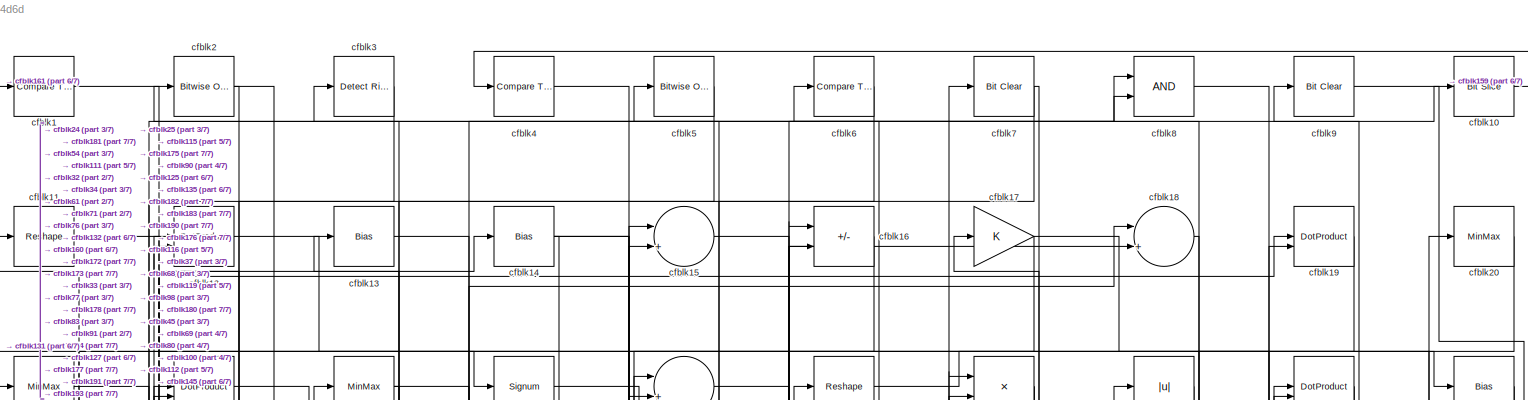
[diagram: root canvas - part 1/7, full width, top band]
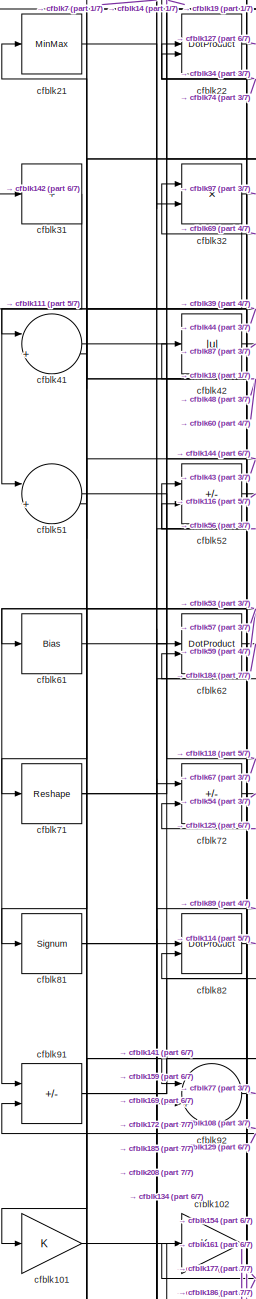
[diagram: root canvas - part 2/7, top left region]
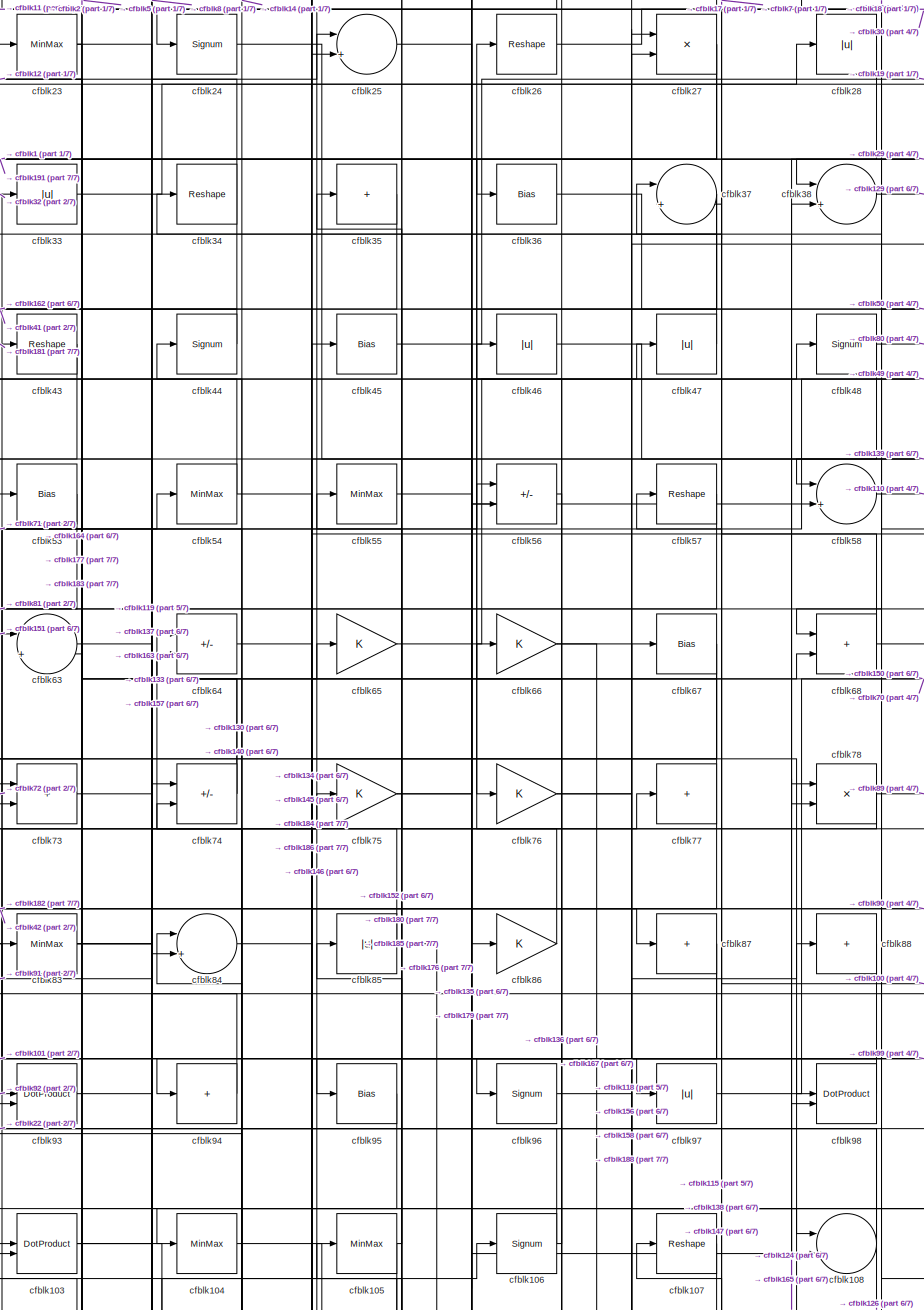
[diagram: root canvas - part 3/7, top center region]
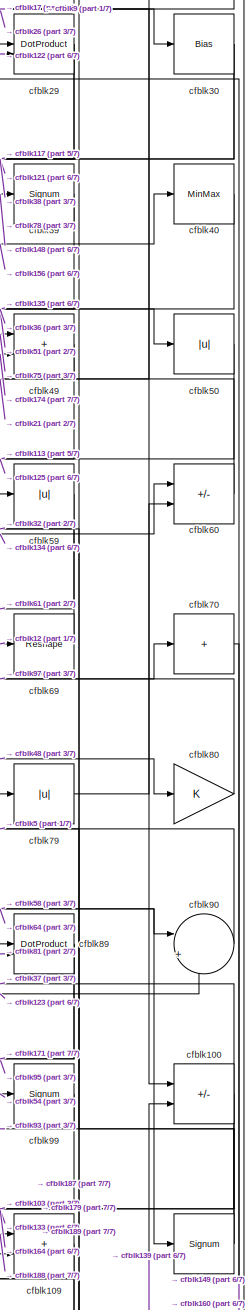
[diagram: root canvas - part 4/7, top right region]
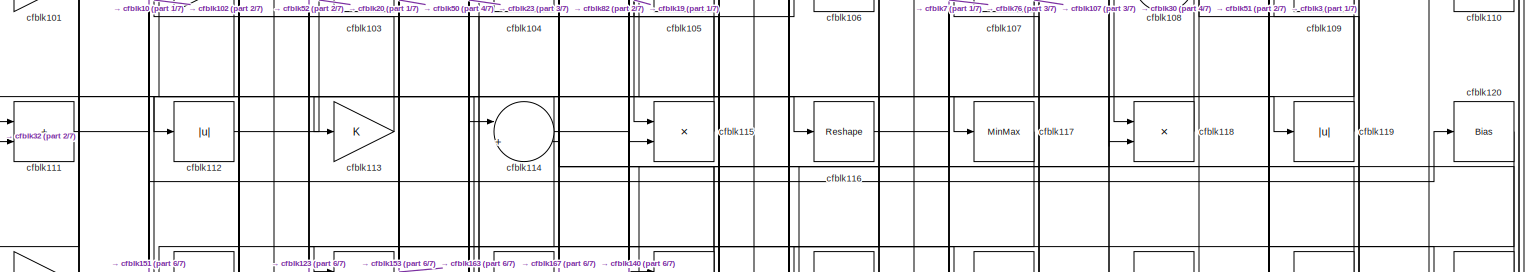
[diagram: root canvas - part 5/7, full width, middle band]
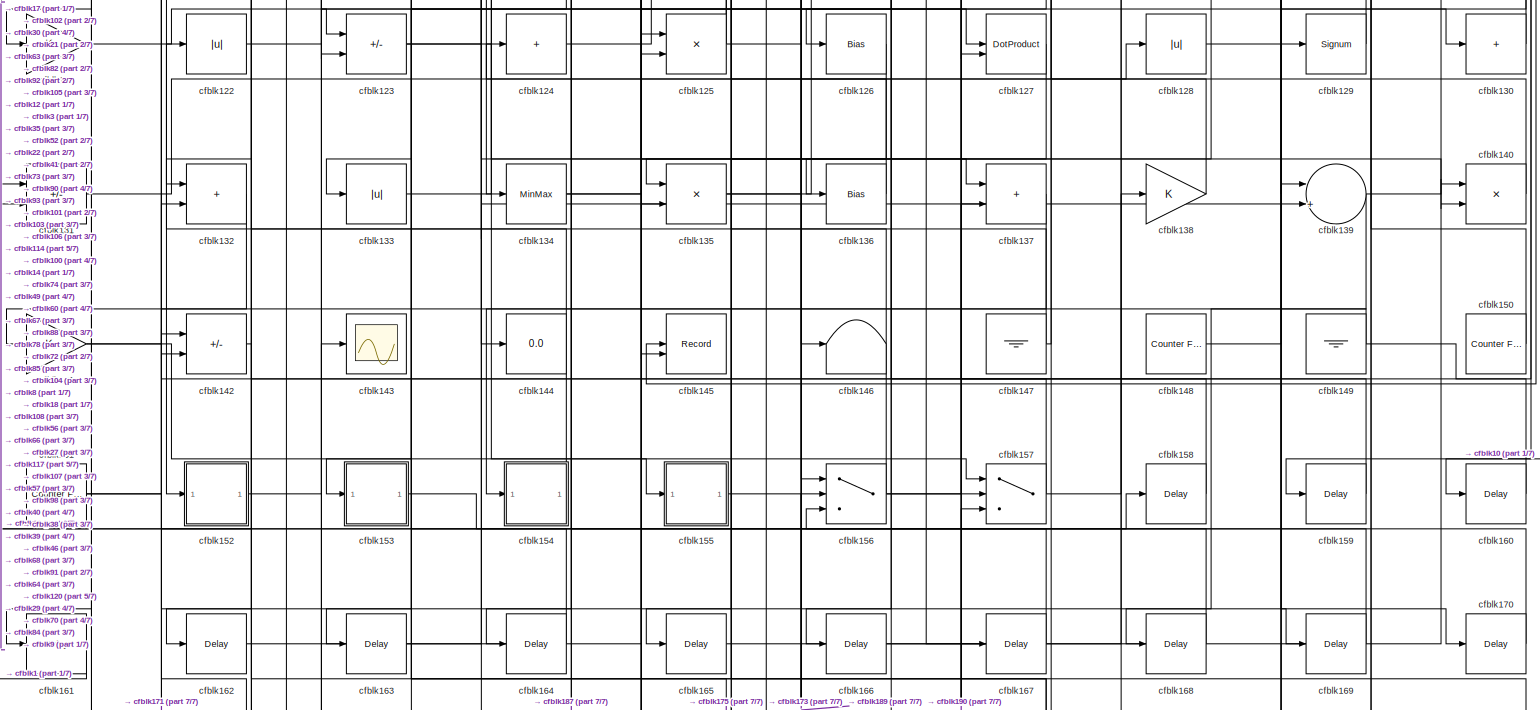
[diagram: root canvas - part 6/7, full width, bottom band]
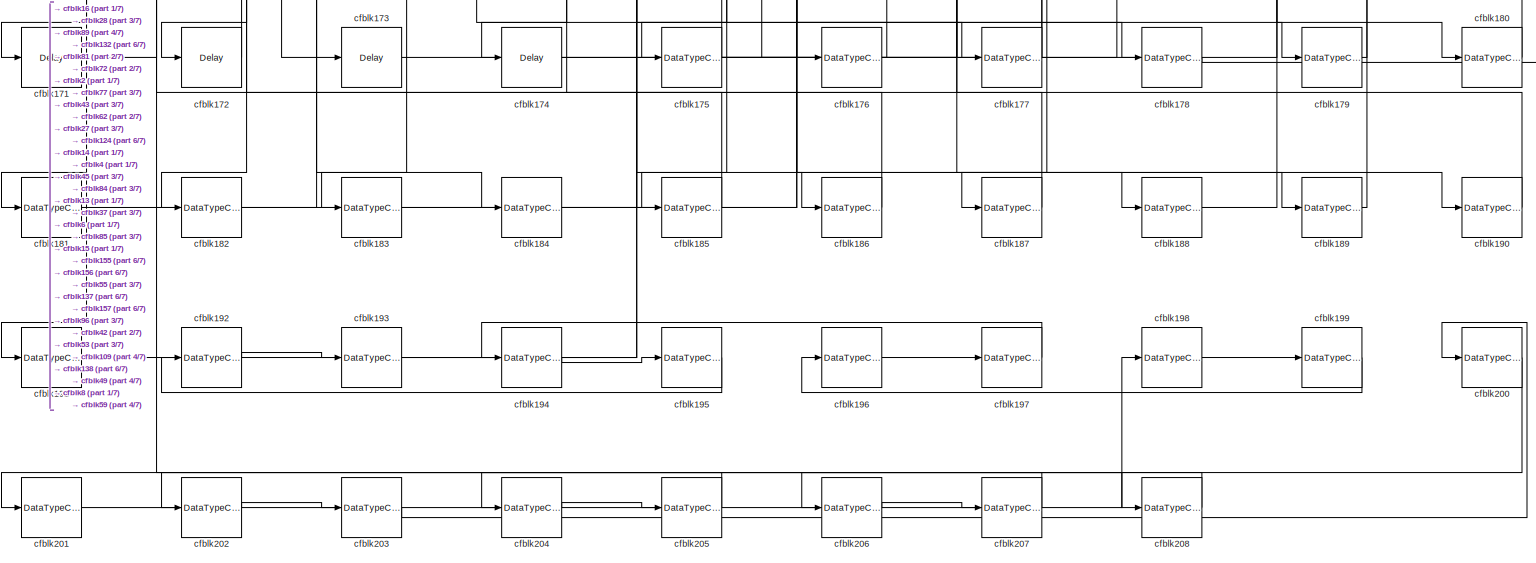
[diagram: root canvas - part 7/7, full width, bottom band]
MODEL slx_afeb604e4d6d
KIND model
CONFIG AbsTol = auto
CONFIG EnableMultiTasking = off
CONFIG FixedStep = auto
CONFIG MaxStep = auto
CONFIG MinStep = auto
CONFIG RelTol = 1e-3
CONFIG SampleTimeConstraint = Unconstrained
CONFIG SolverName = VariableStepAuto
CONFIG StartTime = 0.0
CONFIG StopTime = 10.0
BLOCK [Reference] cfblk1  REF=hdlsllib/Logic and Bit
Operations/Compare
To Zero
  SourceBlock = hdlsllib/Logic and Bit\nOperations/Compare\nTo Zero
  SourceType = Compare To Zero
BLOCK [Reference] cfblk10  REF=hdlsllib/Logic and Bit
Operations/Bit Slice
  SourceBlock = hdlsllib/Logic and Bit\nOperations/Bit Slice
  SourceType = Bit Slice
BLOCK [Sum] cfblk100
  IconShape = rectangular
  Inputs = +-
BLOCK [Gain] cfblk101
BLOCK [Gain] cfblk102
BLOCK [DotProduct] cfblk103
  OutDataTypeStr = Inherit: Inherit via internal rule
BLOCK [MinMax] cfblk104
BLOCK [MinMax] cfblk105
BLOCK [Signum] cfblk106
BLOCK [Reshape] cfblk107
BLOCK [Sum] cfblk108
  Inputs = |++
BLOCK [Sum] cfblk109
  IconShape = rectangular
BLOCK [Reshape] cfblk11
BLOCK [Signum] cfblk110
BLOCK [Sum] cfblk111
  IconShape = rectangular
BLOCK [Abs] cfblk112
  SaturateOnIntegerOverflow = off
BLOCK [Gain] cfblk113
BLOCK [Sum] cfblk114
  Inputs = |++
BLOCK [Product] cfblk115
  Inputs = */
  RndMeth = Zero
  SaturateOnIntegerOverflow = on
BLOCK [Reshape] cfblk116
BLOCK [MinMax] cfblk117
BLOCK [Product] cfblk118
  Inputs = */
  RndMeth = Zero
  SaturateOnIntegerOverflow = on
BLOCK [Abs] cfblk119
  SaturateOnIntegerOverflow = off
BLOCK [DotProduct] cfblk12
  OutDataTypeStr = Inherit: Inherit via internal rule
BLOCK [Bias] cfblk120
  Bias = 0.0
  SaturateOnIntegerOverflow = off
BLOCK [Gain] cfblk121
BLOCK [Abs] cfblk122
  SaturateOnIntegerOverflow = off
BLOCK [Sum] cfblk123
  IconShape = rectangular
  Inputs = +-
BLOCK [Sum] cfblk124
  IconShape = rectangular
  Inputs = +
BLOCK [Product] cfblk125
  Inputs = */
  RndMeth = Zero
  SaturateOnIntegerOverflow = on
BLOCK [Bias] cfblk126
  Bias = 0.0
  SaturateOnIntegerOverflow = off
BLOCK [DotProduct] cfblk127
  OutDataTypeStr = Inherit: Inherit via internal rule
BLOCK [Abs] cfblk128
  SaturateOnIntegerOverflow = off
BLOCK [Signum] cfblk129
BLOCK [Bias] cfblk13
  Bias = 0.0
  SaturateOnIntegerOverflow = off
BLOCK [Sum] cfblk130
  IconShape = rectangular
  Inputs = +
BLOCK [Sum] cfblk131
  IconShape = rectangular
  Inputs = +-
BLOCK [Sum] cfblk132
  IconShape = rectangular
BLOCK [Abs] cfblk133
  SaturateOnIntegerOverflow = off
BLOCK [MinMax] cfblk134
BLOCK [Product] cfblk135
  Inputs = */
  RndMeth = Zero
  SaturateOnIntegerOverflow = on
BLOCK [Bias] cfblk136
  Bias = 0.0
  SaturateOnIntegerOverflow = off
BLOCK [Sum] cfblk137
  IconShape = rectangular
BLOCK [Gain] cfblk138
BLOCK [Sum] cfblk139
  Inputs = |++
BLOCK [Bias] cfblk14
  Bias = 0.0
  SaturateOnIntegerOverflow = off
BLOCK [Product] cfblk140
  Inputs = */
  RndMeth = Zero
  SaturateOnIntegerOverflow = on
BLOCK [Gain] cfblk141
BLOCK [Sum] cfblk142
  IconShape = rectangular
  Inputs = +-
BLOCK [Scope] cfblk143
  Floating = off
  NumInputPorts = 1
  ScopeSpecificationString = Simulink.scopes.TimeScopeBlockCfg('CurrentConfiguration', extmgr.ConfigurationSet(extmgr.Configuration('Core','General UI',true),extmgr.Configuration('Core','Source UI',true),extmgr.Configuration('Sources','WiredSimulink',true,'DataLoggingVariableName','ScopeData2','DataLoggingSaveFormat','Array','DataLoggingLimitDataPoints',true,'DataLoggingDecimation','1'),extmgr.Configuration('Visuals','Time Do...<+868ch>
BLOCK [Display] cfblk144
  Decimation = 1
BLOCK [Record] cfblk145
  CompatibilityTag = XY
  FileSettingsInternal = {"entries":[{"content":{"excelSettings":{"content":{},"type":"Streamout.ExcelSettings"}},"type":"Streamout.FileSettingStorage","uuid":""}],"packageUris":["http:\/\/schema.mathworks.com\/mf0\/streamout_blocks\/R2020a"],"version":"1.0"}
  Layout = [1 1]
  SignalsInternal = {"entries":[{"content":{"signals":[{"content":{"blockPath":[],"dimensions":[1],"domain":"","lineColor":"#a2142f","plots":[1],"port":1,"signalID":5563,"signalName":"XY Graph:1"},"type":"RecordBlkView.Signal","uuid":""},{"content":{"blockPath":[],"dimensions":[1],"domain":"","lineColor":"#139fff","plots":[1],"port":2,"signalID":5566,"signalName":"XY Graph:2"},"type":"RecordBlkView.Signal","uuid":""}...<+146ch>
  VisualizationBindings = {"xyplotplugin":{"info":[{"series":[{"bindingParametersList":[{"parameter":"X-Axis","signalID":5563,"signalName":"XY Graph:1"},{"parameter":"Y-Axis","signalID":5566,"signalName":"XY Graph:2"}],"seriesID":15514}],"subplotID":1}]}}
  st = -1
BLOCK [Terminator] cfblk146
BLOCK [Ground] cfblk147
BLOCK [Reference] cfblk148  REF=hdlsllib/Sources/Counter
Free-Running
  SourceBlock = hdlsllib/Sources/Counter\nFree-Running
  SourceType = Counter Free-Running
BLOCK [Ground] cfblk149
BLOCK [Sum] cfblk15
  Inputs = |++
BLOCK [Reference] cfblk150  REF=hdlsllib/Sources/Counter
Free-Running
  SourceBlock = hdlsllib/Sources/Counter\nFree-Running
  SourceType = Counter Free-Running
BLOCK [Reference] cfblk151  REF=hdlsllib/Sources/Counter
Free-Running
  SourceBlock = hdlsllib/Sources/Counter\nFree-Running
  SourceType = Counter Free-Running
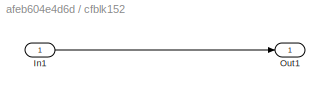
BLOCK [SubSystem] cfblk152
  LibrarySourceBlock = hdlsllib/Ports &\nSubsystems/Subsystem
BLOCK [Inport] cfblk152/In1
BLOCK [Outport] cfblk152/Out1
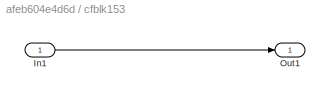
BLOCK [SubSystem] cfblk153
  LibrarySourceBlock = hdlsllib/Ports &\nSubsystems/Subsystem
BLOCK [Inport] cfblk153/In1
BLOCK [Outport] cfblk153/Out1
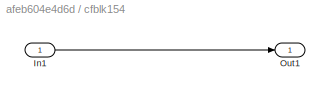
BLOCK [SubSystem] cfblk154
  LibrarySourceBlock = hdlsllib/Ports &\nSubsystems/Subsystem
BLOCK [Inport] cfblk154/In1
BLOCK [Outport] cfblk154/Out1
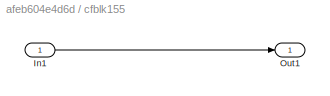
BLOCK [SubSystem] cfblk155
  LibrarySourceBlock = hdlsllib/Ports &\nSubsystems/Subsystem
BLOCK [Inport] cfblk155/In1
BLOCK [Outport] cfblk155/Out1
BLOCK [Switch] cfblk156
  InputSameDT = off
  SaturateOnIntegerOverflow = off
BLOCK [Switch] cfblk157
  InputSameDT = off
  SaturateOnIntegerOverflow = off
BLOCK [Delay] cfblk158
  InputPortMap = u0
  SampleTime = 1
BLOCK [Delay] cfblk159
  InputPortMap = u0
  SampleTime = 1
BLOCK [Sum] cfblk16
  IconShape = rectangular
  Inputs = +-
BLOCK [Delay] cfblk160
  InputPortMap = u0
  SampleTime = 1
BLOCK [Delay] cfblk161
  InputPortMap = u0
  SampleTime = 1
BLOCK [Delay] cfblk162
  InputPortMap = u0
  SampleTime = 1
BLOCK [Delay] cfblk163
  InputPortMap = u0
  SampleTime = 1
BLOCK [Delay] cfblk164
  InputPortMap = u0
  SampleTime = 1
BLOCK [Delay] cfblk165
  InputPortMap = u0
  SampleTime = 1
BLOCK [Delay] cfblk166
  InputPortMap = u0
  SampleTime = 1
BLOCK [Delay] cfblk167
  InputPortMap = u0
  SampleTime = 1
BLOCK [Delay] cfblk168
  InputPortMap = u0
  SampleTime = 1
BLOCK [Delay] cfblk169
  InputPortMap = u0
  SampleTime = 1
BLOCK [Gain] cfblk17
BLOCK [Delay] cfblk170
  InputPortMap = u0
  SampleTime = 1
BLOCK [Delay] cfblk171
  InputPortMap = u0
  SampleTime = 1
BLOCK [Delay] cfblk172
  InputPortMap = u0
  SampleTime = 1
BLOCK [Delay] cfblk173
  InputPortMap = u0
  SampleTime = 1
BLOCK [Delay] cfblk174
  InputPortMap = u0
  SampleTime = 1
BLOCK [DataTypeConversion] cfblk175
  RndMeth = Floor
  SaturateOnIntegerOverflow = off
BLOCK [DataTypeConversion] cfblk176
  OutDataTypeStr = uint8
  RndMeth = Floor
  SaturateOnIntegerOverflow = off
BLOCK [DataTypeConversion] cfblk177
  RndMeth = Floor
  SaturateOnIntegerOverflow = off
BLOCK [DataTypeConversion] cfblk178
  OutDataTypeStr = uint8
  RndMeth = Floor
  SaturateOnIntegerOverflow = off
BLOCK [DataTypeConversion] cfblk179
  OutDataTypeStr = uint8
  RndMeth = Floor
  SaturateOnIntegerOverflow = off
BLOCK [Sum] cfblk18
  Inputs = |++
BLOCK [DataTypeConversion] cfblk180
  OutDataTypeStr = uint8
  RndMeth = Floor
  SaturateOnIntegerOverflow = off
BLOCK [DataTypeConversion] cfblk181
  OutDataTypeStr = uint8
  RndMeth = Floor
  SaturateOnIntegerOverflow = off
BLOCK [DataTypeConversion] cfblk182
  OutDataTypeStr = uint8
  RndMeth = Floor
  SaturateOnIntegerOverflow = off
BLOCK [DataTypeConversion] cfblk183
  OutDataTypeStr = uint8
  RndMeth = Floor
  SaturateOnIntegerOverflow = off
BLOCK [DataTypeConversion] cfblk184
  OutDataTypeStr = uint8
  RndMeth = Floor
  SaturateOnIntegerOverflow = off
BLOCK [DataTypeConversion] cfblk185
  OutDataTypeStr = uint8
  RndMeth = Floor
  SaturateOnIntegerOverflow = off
BLOCK [DataTypeConversion] cfblk186
  OutDataTypeStr = uint8
  RndMeth = Floor
  SaturateOnIntegerOverflow = off
BLOCK [DataTypeConversion] cfblk187
  OutDataTypeStr = uint8
  RndMeth = Floor
  SaturateOnIntegerOverflow = off
BLOCK [DataTypeConversion] cfblk188
  OutDataTypeStr = uint8
  RndMeth = Floor
  SaturateOnIntegerOverflow = off
BLOCK [DataTypeConversion] cfblk189
  OutDataTypeStr = uint8
  RndMeth = Floor
  SaturateOnIntegerOverflow = off
BLOCK [DotProduct] cfblk19
  OutDataTypeStr = Inherit: Inherit via internal rule
BLOCK [DataTypeConversion] cfblk190
  OutDataTypeStr = uint8
  RndMeth = Floor
  SaturateOnIntegerOverflow = off
BLOCK [DataTypeConversion] cfblk191
  OutDataTypeStr = uint8
  RndMeth = Floor
  SaturateOnIntegerOverflow = off
BLOCK [DataTypeConversion] cfblk192
  OutDataTypeStr = uint8
  RndMeth = Floor
  SaturateOnIntegerOverflow = off
BLOCK [DataTypeConversion] cfblk193
  OutDataTypeStr = uint8
  RndMeth = Floor
  SaturateOnIntegerOverflow = off
BLOCK [DataTypeConversion] cfblk194
  OutDataTypeStr = uint8
  RndMeth = Floor
  SaturateOnIntegerOverflow = off
BLOCK [DataTypeConversion] cfblk195
  OutDataTypeStr = uint8
  RndMeth = Floor
  SaturateOnIntegerOverflow = off
BLOCK [DataTypeConversion] cfblk196
  OutDataTypeStr = uint8
  RndMeth = Floor
  SaturateOnIntegerOverflow = off
BLOCK [DataTypeConversion] cfblk197
  OutDataTypeStr = uint8
  RndMeth = Floor
  SaturateOnIntegerOverflow = off
BLOCK [DataTypeConversion] cfblk198
  OutDataTypeStr = uint8
  RndMeth = Floor
  SaturateOnIntegerOverflow = off
BLOCK [DataTypeConversion] cfblk199
  OutDataTypeStr = uint8
  RndMeth = Floor
  SaturateOnIntegerOverflow = off
BLOCK [Reference] cfblk2  REF=simulink/Logic and Bit
Operations/Bitwise
Operator
  LibrarySourceBlock = hdlsllib/Logic and Bit\nOperations/Bitwise\nOperator
  SourceBlock = simulink/Logic and Bit\nOperations/Bitwise\nOperator
  SourceType = Bitwise Operator
BLOCK [MinMax] cfblk20
BLOCK [DataTypeConversion] cfblk200
  OutDataTypeStr = uint8
  RndMeth = Floor
  SaturateOnIntegerOverflow = off
BLOCK [DataTypeConversion] cfblk201
  OutDataTypeStr = uint8
  RndMeth = Floor
  SaturateOnIntegerOverflow = off
BLOCK [DataTypeConversion] cfblk202
  OutDataTypeStr = uint8
  RndMeth = Floor
  SaturateOnIntegerOverflow = off
BLOCK [DataTypeConversion] cfblk203
  OutDataTypeStr = uint8
  RndMeth = Floor
  SaturateOnIntegerOverflow = off
BLOCK [DataTypeConversion] cfblk204
  OutDataTypeStr = uint8
  RndMeth = Floor
  SaturateOnIntegerOverflow = off
BLOCK [DataTypeConversion] cfblk205
  OutDataTypeStr = uint8
  RndMeth = Floor
  SaturateOnIntegerOverflow = off
BLOCK [DataTypeConversion] cfblk206
  OutDataTypeStr = uint8
  RndMeth = Floor
  SaturateOnIntegerOverflow = off
BLOCK [DataTypeConversion] cfblk207
  OutDataTypeStr = uint8
  RndMeth = Floor
  SaturateOnIntegerOverflow = off
BLOCK [DataTypeConversion] cfblk208
  OutDataTypeStr = uint8
  RndMeth = Floor
  SaturateOnIntegerOverflow = off
BLOCK [MinMax] cfblk21
BLOCK [DotProduct] cfblk22
  OutDataTypeStr = Inherit: Inherit via internal rule
BLOCK [MinMax] cfblk23
BLOCK [Signum] cfblk24
BLOCK [Sum] cfblk25
  Inputs = |++
BLOCK [Reshape] cfblk26
BLOCK [Product] cfblk27
  Inputs = */
  RndMeth = Zero
  SaturateOnIntegerOverflow = on
BLOCK [Abs] cfblk28
  SaturateOnIntegerOverflow = off
BLOCK [DotProduct] cfblk29
  OutDataTypeStr = Inherit: Inherit via internal rule
BLOCK [Reference] cfblk3  REF=hdlsllib/Logic and Bit
Operations/Detect Rise
Nonnegative
  SourceBlock = hdlsllib/Logic and Bit\nOperations/Detect Rise\nNonnegative
  SourceType = Detect Rise Nonnegative
BLOCK [Bias] cfblk30
  Bias = 0.0
  SaturateOnIntegerOverflow = off
BLOCK [Sum] cfblk31
  IconShape = rectangular
  Inputs = +
BLOCK [Product] cfblk32
  Inputs = */
  RndMeth = Zero
  SaturateOnIntegerOverflow = on
BLOCK [Abs] cfblk33
  SaturateOnIntegerOverflow = off
BLOCK [Reshape] cfblk34
BLOCK [Sum] cfblk35
  IconShape = rectangular
  Inputs = +
BLOCK [Bias] cfblk36
  Bias = 0.0
  SaturateOnIntegerOverflow = off
BLOCK [Sum] cfblk37
  Inputs = |++
BLOCK [Sum] cfblk38
  Inputs = |++
BLOCK [Signum] cfblk39
BLOCK [Reference] cfblk4  REF=hdlsllib/Logic and Bit
Operations/Compare
To Constant
  SourceBlock = hdlsllib/Logic and Bit\nOperations/Compare\nTo Constant
  SourceType = Compare To Constant
BLOCK [MinMax] cfblk40
BLOCK [Sum] cfblk41
  Inputs = |++
BLOCK [Abs] cfblk42
  SaturateOnIntegerOverflow = off
BLOCK [Reshape] cfblk43
BLOCK [Signum] cfblk44
BLOCK [Bias] cfblk45
  Bias = 0.0
  SaturateOnIntegerOverflow = off
BLOCK [Abs] cfblk46
  SaturateOnIntegerOverflow = off
BLOCK [Abs] cfblk47
  SaturateOnIntegerOverflow = off
BLOCK [Signum] cfblk48
BLOCK [Sum] cfblk49
  IconShape = rectangular
BLOCK [Reference] cfblk5  REF=simulink/Logic and Bit
Operations/Bitwise
Operator
  LibrarySourceBlock = hdlsllib/Logic and Bit\nOperations/Bitwise\nOperator
  SourceBlock = simulink/Logic and Bit\nOperations/Bitwise\nOperator
  SourceType = Bitwise Operator
BLOCK [Abs] cfblk50
  SaturateOnIntegerOverflow = off
BLOCK [Sum] cfblk51
  Inputs = |++
BLOCK [Sum] cfblk52
  IconShape = rectangular
  Inputs = +-
BLOCK [Bias] cfblk53
  Bias = 0.0
  SaturateOnIntegerOverflow = off
BLOCK [MinMax] cfblk54
BLOCK [MinMax] cfblk55
BLOCK [Sum] cfblk56
  IconShape = rectangular
  Inputs = +-
BLOCK [Reshape] cfblk57
BLOCK [Sum] cfblk58
  Inputs = |++
BLOCK [Abs] cfblk59
  SaturateOnIntegerOverflow = off
BLOCK [Reference] cfblk6  REF=hdlsllib/Logic and Bit
Operations/Compare
To Zero
  SourceBlock = hdlsllib/Logic and Bit\nOperations/Compare\nTo Zero
  SourceType = Compare To Zero
BLOCK [Sum] cfblk60
  IconShape = rectangular
  Inputs = +-
BLOCK [Bias] cfblk61
  Bias = 0.0
  SaturateOnIntegerOverflow = off
BLOCK [DotProduct] cfblk62
  OutDataTypeStr = Inherit: Inherit via internal rule
BLOCK [Sum] cfblk63
  Inputs = |++
BLOCK [Sum] cfblk64
  IconShape = rectangular
  Inputs = +-
BLOCK [Gain] cfblk65
BLOCK [Gain] cfblk66
BLOCK [Bias] cfblk67
  Bias = 0.0
  SaturateOnIntegerOverflow = off
BLOCK [Sum] cfblk68
  IconShape = rectangular
BLOCK [Reshape] cfblk69
BLOCK [Reference] cfblk7  REF=simulink/Logic and Bit
Operations/Bit Clear
  LibrarySourceBlock = hdlsllib/Logic and Bit\nOperations/Bit Clear
  SourceBlock = simulink/Logic and Bit\nOperations/Bit Clear
  SourceType = Bit Clear
BLOCK [Sum] cfblk70
  IconShape = rectangular
  Inputs = +
BLOCK [Reshape] cfblk71
BLOCK [Sum] cfblk72
  IconShape = rectangular
  Inputs = +-
BLOCK [Sum] cfblk73
  IconShape = rectangular
BLOCK [Sum] cfblk74
  IconShape = rectangular
  Inputs = +-
BLOCK [Gain] cfblk75
BLOCK [Gain] cfblk76
BLOCK [Sum] cfblk77
  IconShape = rectangular
  Inputs = +
BLOCK [Product] cfblk78
  Inputs = */
  RndMeth = Zero
  SaturateOnIntegerOverflow = on
BLOCK [Abs] cfblk79
  SaturateOnIntegerOverflow = off
BLOCK [Logic] cfblk8
  AllPortsSameDT = off
  OutDataTypeStr = boolean
BLOCK [Gain] cfblk80
BLOCK [Signum] cfblk81
BLOCK [DotProduct] cfblk82
  OutDataTypeStr = Inherit: Inherit via internal rule
BLOCK [MinMax] cfblk83
BLOCK [Sum] cfblk84
  Inputs = |++
BLOCK [Abs] cfblk85
  SaturateOnIntegerOverflow = off
BLOCK [Gain] cfblk86
BLOCK [Sum] cfblk87
  IconShape = rectangular
  Inputs = +
BLOCK [Sum] cfblk88
  IconShape = rectangular
  Inputs = +
BLOCK [DotProduct] cfblk89
  OutDataTypeStr = Inherit: Inherit via internal rule
BLOCK [Reference] cfblk9  REF=simulink/Logic and Bit
Operations/Bit Clear
  LibrarySourceBlock = hdlsllib/Logic and Bit\nOperations/Bit Clear
  SourceBlock = simulink/Logic and Bit\nOperations/Bit Clear
  SourceType = Bit Clear
BLOCK [Sum] cfblk90
  Inputs = |++
BLOCK [Sum] cfblk91
  IconShape = rectangular
  Inputs = +-
BLOCK [Sum] cfblk92
  Inputs = |++
BLOCK [DotProduct] cfblk93
  OutDataTypeStr = Inherit: Inherit via internal rule
BLOCK [Sum] cfblk94
  IconShape = rectangular
  Inputs = +
BLOCK [Bias] cfblk95
  Bias = 0.0
  SaturateOnIntegerOverflow = off
BLOCK [Signum] cfblk96
BLOCK [Abs] cfblk97
  SaturateOnIntegerOverflow = off
BLOCK [DotProduct] cfblk98
  OutDataTypeStr = Inherit: Inherit via internal rule
BLOCK [Signum] cfblk99
NET cfblk100:1 -> cfblk133:1, cfblk164:1, cfblk37:1
LINE cfblk101:1 -> cfblk134:1
LINE cfblk102:1 -> cfblk161:1
NET cfblk103:1 -> cfblk157:1, cfblk25:1
LINE cfblk104:1 -> cfblk146:1
NET cfblk105:1 -> cfblk152:1, cfblk35:1
NET cfblk106:1 -> cfblk63:2, cfblk66:1
LINE cfblk107:1 -> cfblk115:2
NET cfblk108:1 -> cfblk126:1, cfblk22:2, cfblk44:1
LINE cfblk109:1 -> cfblk187:1
LINE cfblk10:1 -> cfblk159:1
NET cfblk110:1 -> cfblk79:1, cfblk93:1
LINE cfblk111:1 -> cfblk10:1
LINE cfblk112:1 -> cfblk20:1
LINE cfblk113:1 -> cfblk82:2
NET cfblk114:1 -> cfblk111:1, cfblk140:2, cfblk153:1
LINE cfblk115:1 -> cfblk102:1
LINE cfblk116:1 -> cfblk7:1
LINE cfblk117:1 -> cfblk163:1
LINE cfblk118:1 -> cfblk112:1
LINE cfblk119:1 -> cfblk3:1
LINE cfblk11:1 -> cfblk24:1
LINE cfblk120:1 -> cfblk123:2
LINE cfblk121:1 -> cfblk123:1
LINE cfblk122:1 -> cfblk29:2
NET cfblk123:1 -> cfblk156:1, cfblk90:2
LINE cfblk124:1 -> cfblk78:1
NET cfblk125:1 -> cfblk52:2, cfblk72:2, cfblk8:2
LINE cfblk126:1 -> cfblk165:1
LINE cfblk127:1 -> cfblk166:1
LINE cfblk128:1 -> cfblk170:1
LINE cfblk129:1 -> cfblk91:2
LINE cfblk12:1 -> cfblk69:1
LINE cfblk130:1 -> cfblk84:1
LINE cfblk131:1 -> cfblk128:1
LINE cfblk132:1 -> cfblk142:2
LINE cfblk133:1 -> cfblk106:1
NET cfblk134:1 -> cfblk60:1, cfblk68:2
NET cfblk135:1 -> cfblk18:2, cfblk67:1
LINE cfblk136:1 -> cfblk105:1
LINE cfblk137:1 -> cfblk154:1
LINE cfblk138:1 -> cfblk57:1
NET cfblk139:1 -> cfblk100:2, cfblk168:1
LINE cfblk13:1 -> cfblk178:1
LINE cfblk140:1 -> cfblk74:2
NET cfblk141:1 -> cfblk155:1, cfblk92:2
LINE cfblk142:1 -> cfblk31:1
NET cfblk147:1 -> cfblk107:1, cfblk85:1
LINE cfblk148:1 -> cfblk39:1
NET cfblk149:1 -> cfblk141:1, cfblk29:1
NET cfblk14:1 -> cfblk127:2, cfblk174:1, cfblk25:2
LINE cfblk150:1 -> cfblk64:2
NET cfblk151:1 -> cfblk120:1, cfblk63:1
LINE cfblk152/In1:1 -> cfblk152/Out1:1
LINE cfblk152:1 -> cfblk143:1
LINE cfblk153/In1:1 -> cfblk153/Out1:1
LINE cfblk153:1 -> cfblk158:1
LINE cfblk154/In1:1 -> cfblk154/Out1:1
LINE cfblk154:1 -> cfblk52:1
LINE cfblk155/In1:1 -> cfblk155/Out1:1
LINE cfblk155:1 -> cfblk189:1
NET cfblk156:1 -> cfblk122:1, cfblk40:1, cfblk88:1
NET cfblk157:1 -> cfblk38:2, cfblk46:1
LINE cfblk158:1 -> cfblk27:1
LINE cfblk159:1 -> cfblk82:1
LINE cfblk15:1 -> cfblk190:1
LINE cfblk160:1 -> cfblk12:2
LINE cfblk161:1 -> cfblk1:1
LINE cfblk162:1 -> cfblk125:1
LINE cfblk163:1 -> cfblk74:1
LINE cfblk164:1 -> cfblk93:2
LINE cfblk165:1 -> cfblk98:2
LINE cfblk166:1 -> cfblk140:1
LINE cfblk167:1 -> cfblk114:2
LINE cfblk168:1 -> cfblk156:3
LINE cfblk169:1 -> cfblk142:1
LINE cfblk16:1 -> cfblk181:1
LINE cfblk170:1 -> cfblk131:1
LINE cfblk171:1 -> cfblk132:2
LINE cfblk172:1 -> cfblk72:1
LINE cfblk173:1 -> cfblk156:2
LINE cfblk174:1 -> cfblk49:2
NET cfblk175:1 -> cfblk137:2, cfblk138:1, cfblk13:1, cfblk157:3
LINE cfblk176:1 -> cfblk6:1
NET cfblk177:1 -> cfblk42:1, cfblk53:1
LINE cfblk178:1 -> cfblk4:1
LINE cfblk179:1 -> cfblk59:1
NET cfblk17:1 -> cfblk100:1, cfblk131:2
LINE cfblk180:1 -> cfblk55:1
LINE cfblk181:1 -> cfblk43:1
LINE cfblk182:1 -> cfblk16:1
LINE cfblk183:1 -> cfblk16:2
LINE cfblk184:1 -> cfblk45:1
LINE cfblk185:1 -> cfblk62:1
LINE cfblk186:1 -> cfblk62:2
LINE cfblk187:1 -> cfblk124:1
LINE cfblk188:1 -> cfblk109:1
LINE cfblk189:1 -> cfblk109:2
LINE cfblk18:1 -> cfblk68:1
LINE cfblk190:1 -> cfblk157:2
LINE cfblk191:1 -> cfblk15:1
LINE cfblk192:1 -> cfblk193:1
LINE cfblk193:1 -> cfblk15:2
LINE cfblk194:1 -> cfblk195:1
LINE cfblk195:1 -> cfblk192:1
LINE cfblk196:1 -> cfblk197:1
LINE cfblk197:1 -> cfblk194:1
LINE cfblk198:1 -> cfblk199:1
LINE cfblk199:1 -> cfblk196:1
LINE cfblk19:1 -> cfblk115:1
LINE cfblk1:1 -> cfblk76:1
LINE cfblk200:1 -> cfblk201:1
LINE cfblk201:1 -> cfblk198:1
LINE cfblk202:1 -> cfblk203:1
LINE cfblk203:1 -> cfblk200:1
LINE cfblk204:1 -> cfblk205:1
LINE cfblk205:1 -> cfblk202:1
LINE cfblk206:1 -> cfblk207:1
LINE cfblk207:1 -> cfblk204:1
LINE cfblk208:1 -> cfblk206:1
LINE cfblk20:1 -> cfblk98:1
LINE cfblk21:1 -> cfblk169:1
LINE cfblk22:1 -> cfblk127:1
NET cfblk23:1 -> cfblk119:1, cfblk73:1
LINE cfblk24:1 -> cfblk86:1
LINE cfblk25:1 -> cfblk108:2
LINE cfblk26:1 -> cfblk30:1
NET cfblk27:1 -> cfblk103:2, cfblk183:1, cfblk36:1
LINE cfblk28:1 -> cfblk191:1
NET cfblk29:1 -> cfblk38:1, cfblk78:2
NET cfblk2:1 -> cfblk172:1, cfblk173:1
NET cfblk30:1 -> cfblk117:1, cfblk121:1
LINE cfblk31:1 -> cfblk51:1
NET cfblk32:1 -> cfblk111:2, cfblk97:1
LINE cfblk33:1 -> cfblk28:1
NET cfblk34:1 -> cfblk12:1, cfblk41:2
LINE cfblk35:1 -> cfblk162:1
LINE cfblk36:1 -> cfblk50:1
NET cfblk37:1 -> cfblk185:1, cfblk56:2
LINE cfblk38:1 -> cfblk129:1
LINE cfblk39:1 -> cfblk51:2
LINE cfblk3:1 -> cfblk132:1
LINE cfblk40:1 -> cfblk135:1
LINE cfblk41:1 -> cfblk144:1
LINE cfblk42:1 -> cfblk87:1
LINE cfblk43:1 -> cfblk71:1
LINE cfblk44:1 -> cfblk41:1
LINE cfblk45:1 -> cfblk19:2
LINE cfblk46:1 -> cfblk139:1
LINE cfblk47:1 -> cfblk34:1
NET cfblk48:1 -> cfblk58:1, cfblk80:1
LINE cfblk49:1 -> cfblk125:2
LINE cfblk4:1 -> cfblk177:1
LINE cfblk50:1 -> cfblk113:1
LINE cfblk51:1 -> cfblk118:1
LINE cfblk52:1 -> cfblk116:1
LINE cfblk53:1 -> cfblk91:1
NET cfblk54:1 -> cfblk11:1, cfblk99:1
LINE cfblk55:1 -> cfblk179:1
LINE cfblk56:1 -> cfblk136:1
LINE cfblk57:1 -> cfblk81:1
LINE cfblk58:1 -> cfblk110:1
LINE cfblk59:1 -> cfblk61:1
LINE cfblk5:1 -> cfblk33:1
LINE cfblk60:1 -> cfblk21:1
LINE cfblk61:1 -> cfblk14:1
LINE cfblk62:1 -> cfblk184:1
LINE cfblk63:1 -> cfblk84:2
LINE cfblk64:1 -> cfblk90:1
LINE cfblk65:1 -> cfblk47:1
NET cfblk66:1 -> cfblk108:1, cfblk167:1
NET cfblk67:1 -> cfblk145:2, cfblk92:1
NET cfblk68:1 -> cfblk130:1, cfblk17:1
LINE cfblk69:1 -> cfblk32:1
LINE cfblk6:1 -> cfblk175:1
LINE cfblk70:1 -> cfblk160:1
NET cfblk71:1 -> cfblk19:1, cfblk56:1
LINE cfblk72:1 -> cfblk54:1
LINE cfblk73:1 -> cfblk137:1
NET cfblk74:1 -> cfblk22:1, cfblk23:1
NET cfblk75:1 -> cfblk49:1, cfblk58:2
NET cfblk76:1 -> cfblk118:2, cfblk27:2
NET cfblk77:1 -> cfblk182:1, cfblk2:1
NET cfblk78:1 -> cfblk73:2, cfblk89:1
LINE cfblk79:1 -> cfblk60:2
NET cfblk7:1 -> cfblk32:2, cfblk37:2
LINE cfblk80:1 -> cfblk9:1
NET cfblk81:1 -> cfblk208:1, cfblk89:2
LINE cfblk82:1 -> cfblk114:1
NET cfblk83:1 -> cfblk65:1, cfblk75:1, cfblk8:1
LINE cfblk84:1 -> cfblk186:1
NET cfblk85:1 -> cfblk176:1, cfblk64:1
LINE cfblk86:1 -> cfblk26:1
NET cfblk87:1 -> cfblk101:1, cfblk96:1
LINE cfblk88:1 -> cfblk135:2
NET cfblk89:1 -> cfblk171:1, cfblk95:1
LINE cfblk8:1 -> cfblk180:1
LINE cfblk90:1 -> cfblk5:1
NET cfblk91:1 -> cfblk18:1, cfblk48:1
LINE cfblk92:1 -> cfblk77:1
LINE cfblk93:1 -> cfblk139:2
LINE cfblk94:1 -> cfblk83:1
LINE cfblk95:1 -> cfblk104:1
LINE cfblk96:1 -> cfblk188:1
LINE cfblk97:1 -> cfblk70:1
LINE cfblk98:1 -> cfblk94:1
LINE cfblk99:1 -> cfblk103:1
LINE cfblk9:1 -> cfblk145:1
note: NET lines group one-source signal fan-out (src -> all destinations, sorted); 1:1 wires keep LINE
